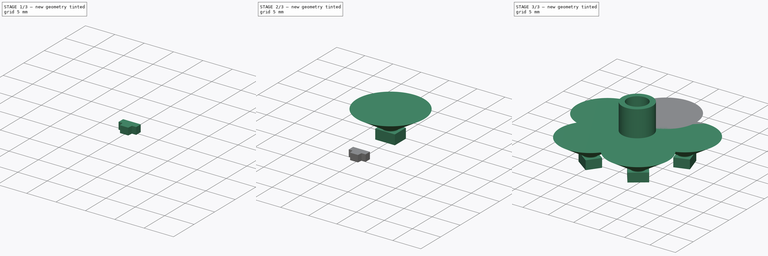
[diagram: build sequence overview — one tinted view per stage of 3, left to right]
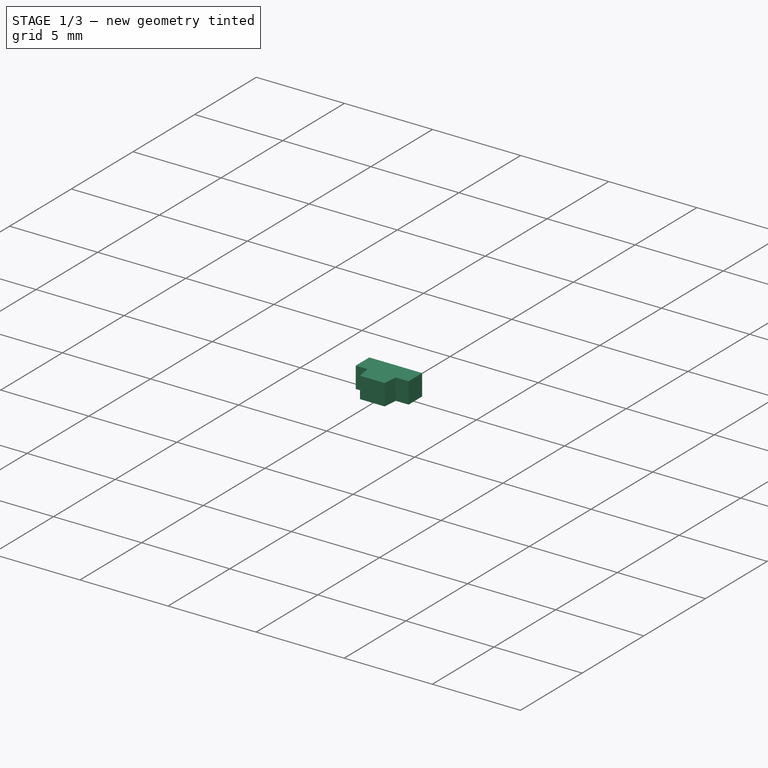
[diagram: stage 1 of 3 — iso view after this stage's code; geometry added in this stage tinted green]
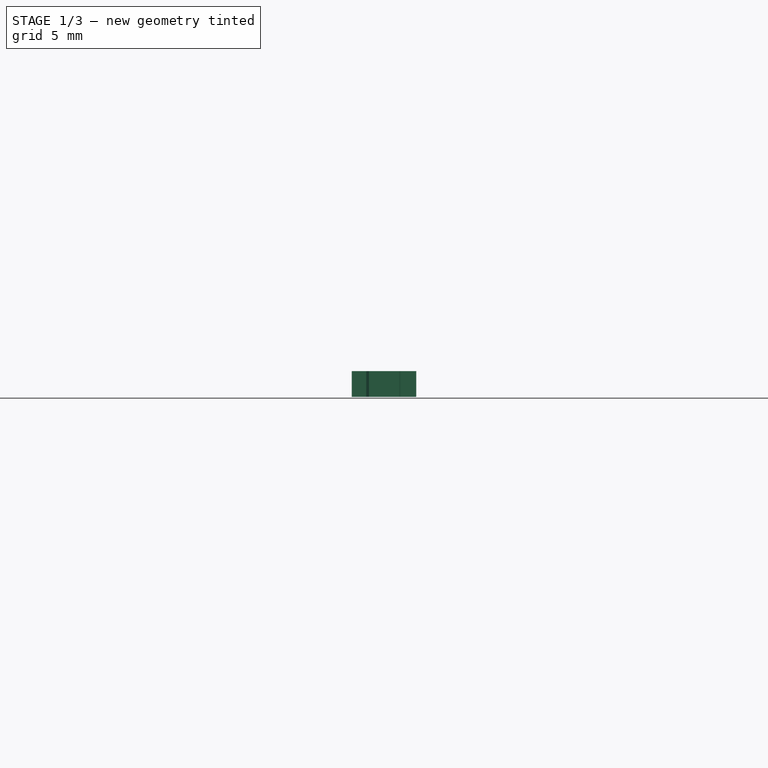
[diagram: stage 1 of 3 — front view after this stage's code; geometry added in this stage tinted green]
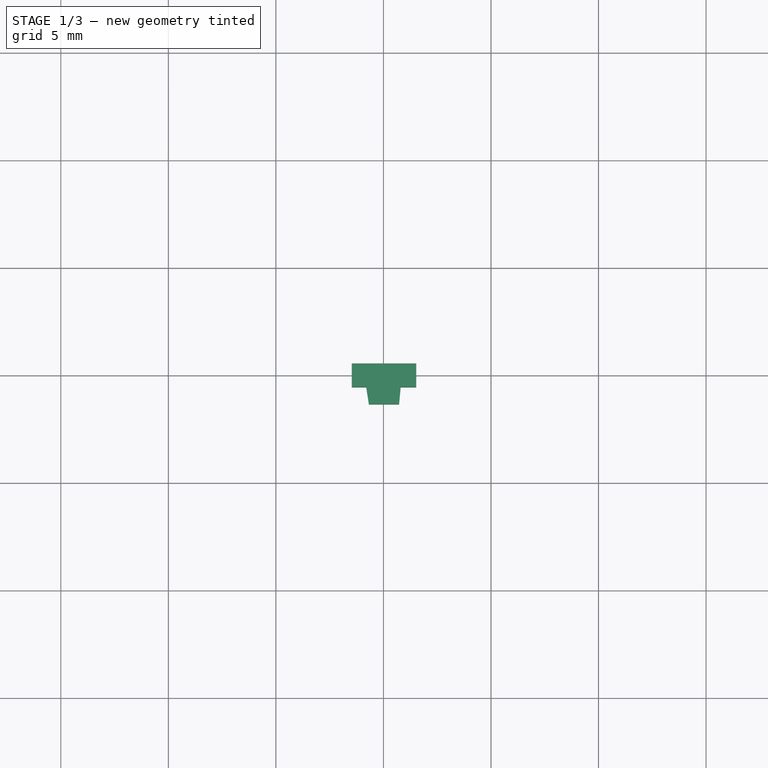
[diagram: stage 1 of 3 — top view after this stage's code; geometry added in this stage tinted green]
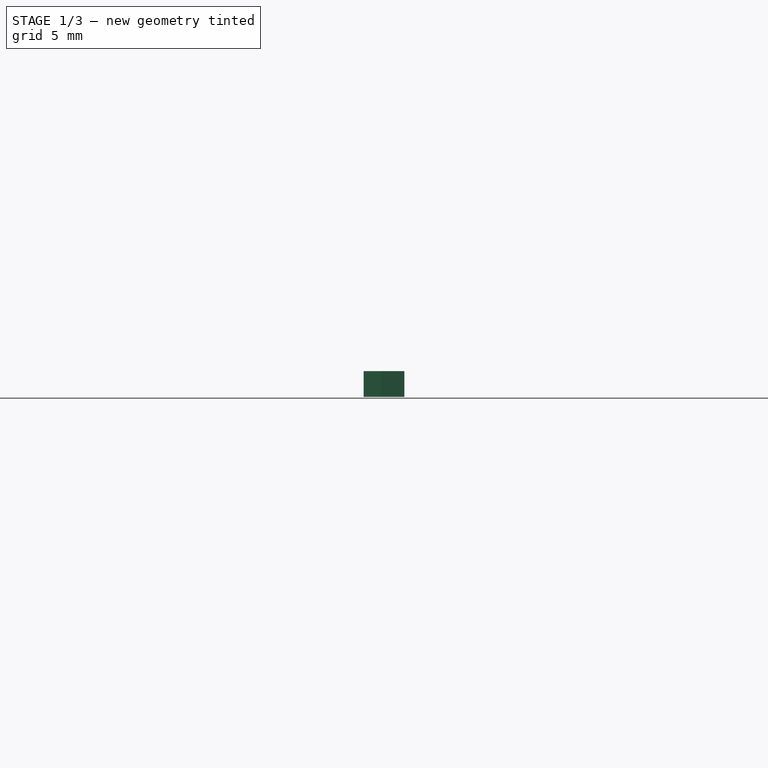
[diagram: stage 1 of 3 — right view after this stage's code; geometry added in this stage tinted green]
FCSTD DOCUMENT  (FreeCAD 0.18R13983 (Git))
Label: POV_DataTransmission_Helper
License: All rights reserved
LicenseURL: http://en.wikipedia.org/wiki/All_rights_reserved
objects: Sketcher::SketchObject×11, PartDesign::Pad×4, PartDesign::Body×3, App::Part×3, PartDesign::AdditiveLoft×2, Part::FeaturePython×1
note: 27 computed .brp shape members not serialized (recipe doc carries the construction recipe); baked Part::Feature solids carry a one-line shape summary decoded from their .brp

FEATURE [App::Part] Part  label="LED_horizontal"
  Group = -> [Body,Array]
  License = CC BY 3.0
  LicenseURL = http://creativecommons.org/licenses/by/3.0/
  Origin = -> Origin
FEATURE [Sketcher::SketchObject] Sketch006
  MapMode = 5
  Support = -> [XY_Plane005]
  sketch-geometry (4):
    g0: LineSegment StartX=-1.47419 StartY=0.560352 StartZ=0 EndX=1.52581 EndY=0.560352 EndZ=0
    g1: LineSegment StartX=1.52581 StartY=0.560352 StartZ=0 EndX=1.52581 EndY=-0.539648 EndZ=0
    g2: LineSegment StartX=1.52581 StartY=-0.539648 StartZ=0 EndX=-1.47419 EndY=-0.539648 EndZ=0
    g3: LineSegment StartX=-1.47419 StartY=-0.539648 StartZ=0 EndX=-1.47419 EndY=0.560352 EndZ=0
  constraints (10):
    c: Coincident(g0,g1)
    c: Coincident(g1,g2)
    c: Coincident(g2,g3)
    c: Coincident(g3,g0)
    c: Horizontal(g0)
    c: Horizontal(g2)
    c: Vertical(g1)
    c: Vertical(g3)
    c: DistanceY(g1,g1) = 1.1
    c: DistanceX(g0,g0) = 3
FEATURE [PartDesign::Pad] Pad003
  Length = 1.2
  Length2 = 100
  Profile = -> Sketch006
  Type = 0
FEATURE [Sketcher::SketchObject] Sketch007
  ExternalGeometry = -> [Pad003]
  MapMode = 5
  Placement = pos=(0,-0.539648,0) rot=(1,0,0;1.5708rad)
  Support = -> [Pad003]
  sketch-geometry (4):
    g0: LineSegment StartX=-0.8 StartY=1.2 StartZ=0 EndX=0.8 EndY=1.2 EndZ=0
    g1: LineSegment StartX=0.8 StartY=1.2 StartZ=0 EndX=0.8 EndY=0 EndZ=0
    g2: LineSegment StartX=0.8 StartY=0 StartZ=0 EndX=-0.8 EndY=0 EndZ=0
    g3: LineSegment StartX=-0.8 StartY=0 StartZ=0 EndX=-0.8 EndY=1.2 EndZ=0
  constraints (11):
    c: Coincident(g0,g1)
    c: Coincident(g1,g2)
    c: Coincident(g2,g3)
    c: Coincident(g3,g0)
    c: Horizontal(g0)
    c: Horizontal(g2)
    c: Vertical(g1)
    c: Vertical(g3)
    c: DistanceX(g0,g0) = 1.6
    c: Symmetric(g2,g2,g-1)
    c: PointOnObject(g0,g-3)
FEATURE [Sketcher::SketchObject] Sketch009  label="helper"
  ExternalGeometry = -> [Pad003]
  MapMode = 5
  Support = -> [XY_Plane005]
  sketch-geometry (4):
    g0: LineSegment StartX=-1.47419 StartY=-1.33965 StartZ=0 EndX=1.52581 EndY=-1.33965 EndZ=0
    g1: LineSegment StartX=-1.47419 StartY=-1.94965 StartZ=0 EndX=1.52581 EndY=-1.94965 EndZ=0
    g2: LineSegment [constr] StartX=-1.47419 StartY=0.560352 StartZ=0 EndX=-1.47419 EndY=-1.94965 EndZ=0
    g3: LineSegment [constr] StartX=1.52581 StartY=-1.94965 StartZ=0 EndX=1.52581 EndY=0.560352 EndZ=0
  constraints (12):
    c: Horizontal(g0)
    c: DistanceY(g0,g-3) = 1.9
    c: Horizontal(g1)
    c: Coincident(g2,g1)
    c: Coincident(g3,g1)
    c: Coincident(g3,g-3)
    c: Vertical(g3)
    c: Vertical(g2)
    c: PointOnObject(g0,g2)
    c: PointOnObject(g0,g3)
    c: Coincident(g2,g-3)
    c: DistanceY(g1,g3) = 2.51
FEATURE [Sketcher::SketchObject] Sketch008
  AttachmentOffset = pos=(0,0,0) rot=(0,1,0;1.5708rad)
  ExternalGeometry = -> [Pad003]
  MapMode = 45
  Placement = pos=(0.025807,-1.33965,0) rot=(0,0.707107,0.707107;3.14159rad)
  Support = -> [Sketch009]
  sketch-geometry (4):
    g0: LineSegment StartX=-0.7 StartY=1.2 StartZ=0 EndX=0.7 EndY=1.2 EndZ=0
    g1: LineSegment StartX=0.7 StartY=1.2 StartZ=0 EndX=0.7 EndY=0 EndZ=0
    g2: LineSegment StartX=0.7 StartY=0 StartZ=0 EndX=-0.7 EndY=0 EndZ=0
    g3: LineSegment StartX=-0.7 StartY=0 StartZ=0 EndX=-0.7 EndY=1.2 EndZ=0
  constraints (11):
    c: Coincident(g0,g1)
    c: Coincident(g1,g2)
    c: Coincident(g2,g3)
    c: Coincident(g3,g0)
    c: Horizontal(g0)
    c: Horizontal(g2)
    c: Vertical(g1)
    c: Vertical(g3)
    c: Symmetric(g2,g2,g-1)
    c: PointOnObject(g0,g-3)
    c: DistanceX(g0,g0) = 1.4
FEATURE [PartDesign::AdditiveLoft] AdditiveLoft001
  BaseFeature = -> Pad003
  Closed = true
  Profile = -> Sketch007
  Ruled = false
  Sections = -> [Sketch008]
FEATURE [Sketcher::SketchObject] Sketch010
  MapMode = 5
  Placement = pos=(0,-1.33965,0) rot=(1,0,0;1.5708rad)
  Support = -> [AdditiveLoft001]
  sketch-geometry (3):
    g0: Circle CenterX=0.067147 CenterY=0.618332 CenterZ=0 NormalX=0 NormalY=0 NormalZ=1 AngleXU=0 Radius=1.00939
    g1: LineSegment StartX=-0.403804 StartY=-0.153466 StartZ=0 EndX=0.588612 EndY=-0.112392 EndZ=0
    g2: LineSegment StartX=-0.246373 StartY=1.29151 StartZ=0 EndX=0.534308 EndY=1.29151 EndZ=0
  constraints (1):
    c: Horizontal(g2)
FEATURE [PartDesign::Body] Body002  label="VSMY14940"
  Group = -> [Sketch006,Pad003,Sketch007,Sketch008,Sketch009,AdditiveLoft001,Sketch010]
  Origin = -> Origin005
  Tip = -> AdditiveLoft001
FEATURE [App::Part] Part002  label="LED_vertical"
  Group = -> [Body002]
  License = CC BY 3.0
  LicenseURL = http://creativecommons.org/licenses/by/3.0/
  Origin = -> Origin004
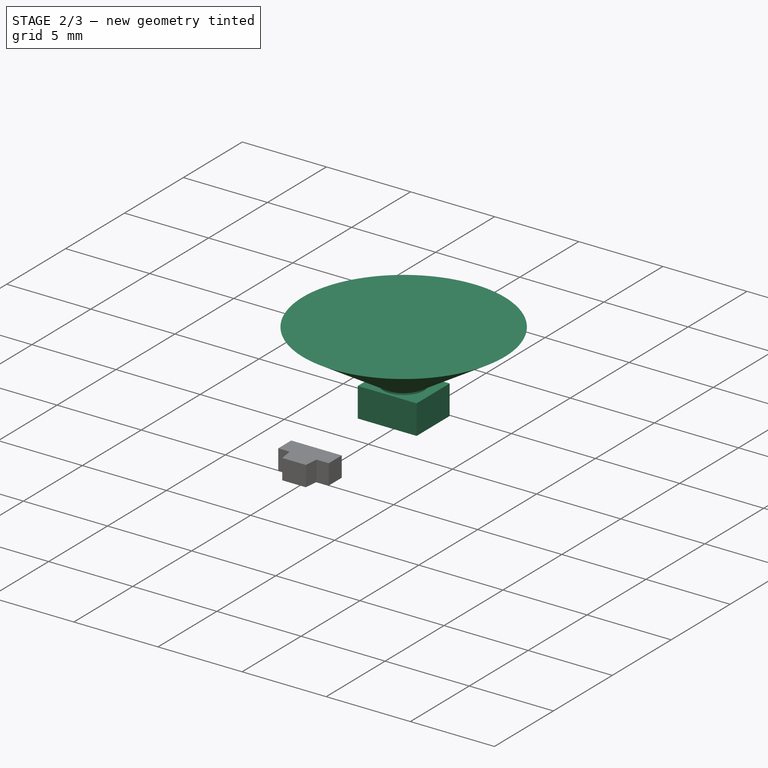
[diagram: stage 2 of 3 — iso view after this stage's code; geometry added in this stage tinted green]
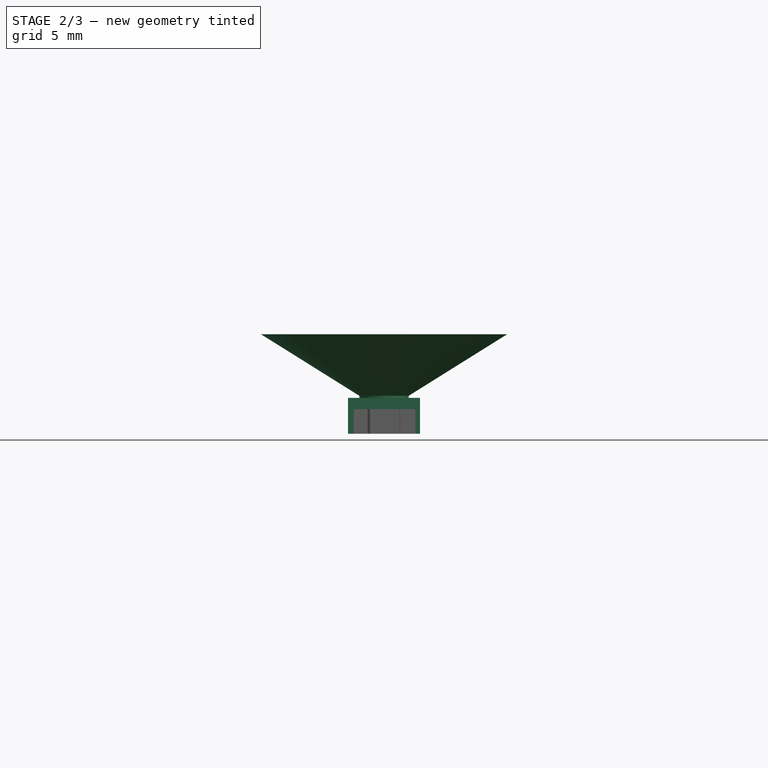
[diagram: stage 2 of 3 — front view after this stage's code; geometry added in this stage tinted green]
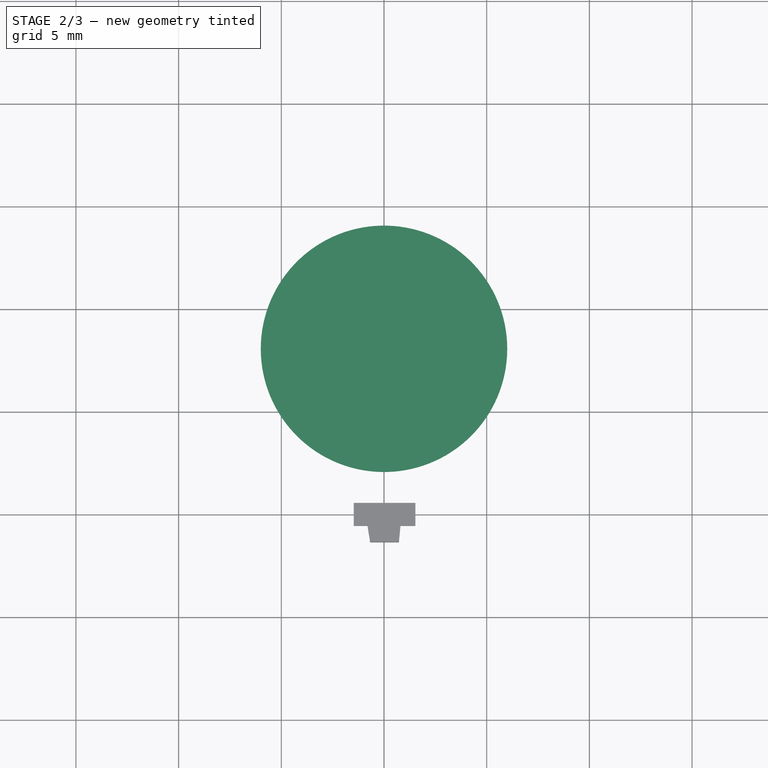
[diagram: stage 2 of 3 — top view after this stage's code; geometry added in this stage tinted green]
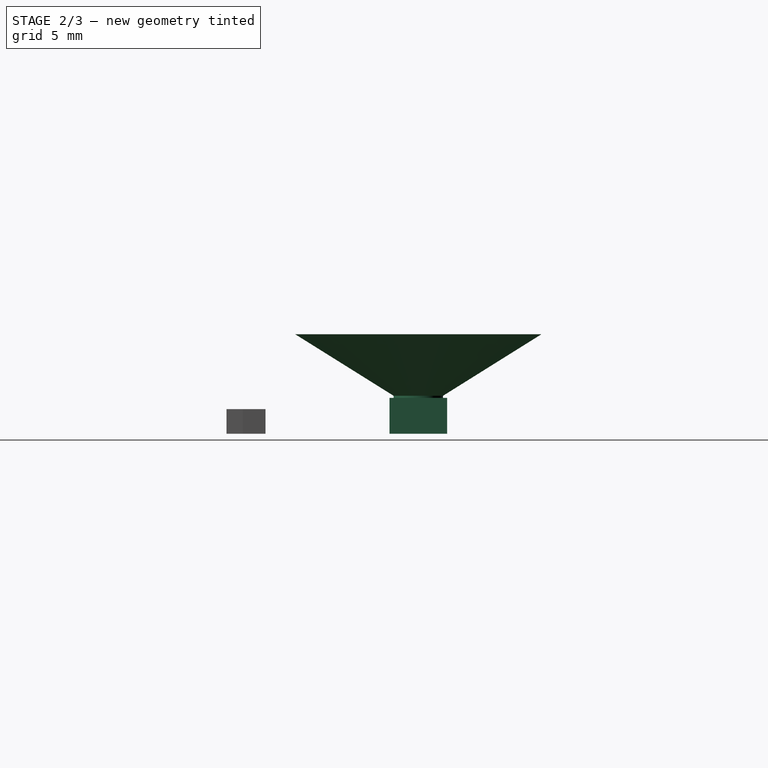
[diagram: stage 2 of 3 — right view after this stage's code; geometry added in this stage tinted green]
FEATURE [Sketcher::SketchObject] Sketch
  sketch-geometry (7):
    g0: LineSegment StartX=-1.75 StartY=9.4 StartZ=0 EndX=1.75 EndY=9.4 EndZ=0
    g1: LineSegment StartX=1.75 StartY=9.4 StartZ=0 EndX=1.75 EndY=6.6 EndZ=0
    g2: LineSegment StartX=1.75 StartY=6.6 StartZ=0 EndX=-1.75 EndY=6.6 EndZ=0
    g3: LineSegment StartX=-1.75 StartY=6.6 StartZ=0 EndX=-1.75 EndY=9.4 EndZ=0
    g4: Circle [constr] CenterX=0 CenterY=0 CenterZ=0 NormalX=0 NormalY=0 NormalZ=1 AngleXU=0 Radius=8
    g5: Circle [constr] CenterX=0 CenterY=0 CenterZ=0 NormalX=0 NormalY=0 NormalZ=1 AngleXU=0 Radius=3
    g6: GeomPoint X=0 Y=8 Z=0
  constraints (17):
    c: Coincident(g0,g1)
    c: Coincident(g1,g2)
    c: Coincident(g2,g3)
    c: Coincident(g3,g0)
    c: Horizontal(g0)
    c: Horizontal(g2)
    c: Vertical(g1)
    c: Vertical(g3)
    c: DistanceX(g0,g0) = 3.5
    c: DistanceY(g1,g1) = 2.8
    c: Coincident(g4,g-1)
    c: Radius(g4) = 8
    c: Coincident(g5,g-1)
    c: Radius(g5) = 3
    c: Symmetric(g2,g0,g6)
    c: PointOnObject(g6,g-2)
    c: PointOnObject(g6,g4)
FEATURE [PartDesign::Pad] Pad
  Length = 1.75
  Length2 = 100
  Profile = -> Sketch
  Type = 0
FEATURE [PartDesign::Body] Body001  label="Axis_Body"
  Group = -> [Sketch001,Pad001]
  Origin = -> Origin003
  Tip = -> Pad001
FEATURE [App::Part] Part001  label="Axis"
  Group = -> [Body001]
  License = CC BY 3.0
  LicenseURL = http://creativecommons.org/licenses/by/3.0/
  Origin = -> Origin002
FEATURE [Sketcher::SketchObject] Sketch002
  ExternalGeometry = -> [Pad]
  MapMode = 5
  Placement = pos=(0,0,1.75) rot=(0,0,1;0rad)
  Support = -> [Pad]
  sketch-geometry (1):
    g0: Circle CenterX=-8e-12 CenterY=8 CenterZ=0 NormalX=0 NormalY=0 NormalZ=1 AngleXU=0 Radius=1.2
  constraints (2):
    c: Radius(g0) = 1.2
    c: Symmetric(g-3,g-4,g0)
FEATURE [PartDesign::Pad] Pad002
  BaseFeature = -> Pad
  Length = 0.1
  Length2 = 100
  Profile = -> Sketch002
  Type = 0
FEATURE [Sketcher::SketchObject] Sketch004
  AttachmentOffset = pos=(0,0,3) rot=(0,0,1;0rad)
  ExternalGeometry = -> [Pad002]
  MapMode = 5
  Placement = pos=(0,0,4.85) rot=(0,0,1;0rad)
  Support = -> [Pad002]
  sketch-geometry (1):
    g0: Circle CenterX=0 CenterY=8 CenterZ=0 NormalX=0 NormalY=0 NormalZ=1 AngleXU=0 Radius=6
  constraints (2):
    c: Radius(g0) = 6
    c: Coincident(g0,g-3)
FEATURE [Sketcher::SketchObject] Sketch005
  ExternalGeometry = -> [Pad002]
  MapMode = 5
  Placement = pos=(0,0,1.85) rot=(0,0,1;0rad)
  Support = -> [Pad002]
  sketch-geometry (1):
    g0: Circle CenterX=-8e-12 CenterY=8 CenterZ=0 NormalX=0 NormalY=0 NormalZ=1 AngleXU=0 Radius=1.2
  constraints (2):
    c: Coincident(g0,g-3)
    c: Equal(g0,g-3)
FEATURE [Sketcher::SketchObject] Sketch003
  ExternalGeometry = -> [Pad002]
  MapMode = 5
  Placement = pos=(0,0,0) rot=(0,0.707107,0.707107;3.14159rad)
  Support = -> [XZ_Plane001]
  sketch-geometry (5):
    g0: LineSegment [constr] StartX=8e-12 StartY=1.85 StartZ=0 EndX=8e-12 EndY=1.75 EndZ=0
    g1: LineSegment StartX=-1.2 StartY=1.85 StartZ=0 EndX=1.2 EndY=1.85 EndZ=0
    g2: LineSegment StartX=1.2 StartY=1.85 StartZ=0 EndX=6.39615 EndY=4.85 EndZ=0
    g3: LineSegment StartX=-1.2 StartY=1.85 StartZ=0 EndX=-6.39615 EndY=4.85 EndZ=0
    g4: LineSegment StartX=-6.39615 StartY=4.85 StartZ=0 EndX=6.39615 EndY=4.85 EndZ=0
  constraints (16):
    c: Vertical(g0)
    c: Symmetric(g-4,g-4,g0)
    c: PointOnObject(g0,g-3)
    c: Horizontal(g1)
    c: Symmetric(g1,g1,g0)
    c: DistanceX(g1,g1) = 2.4
    c: Coincident(g2,g1)
    c: Coincident(g3,g1)
    c: Angle(g-2,g2) = 2.0944
    c: Angle(g3,g-2) = 2.0944
    c: Equal(g3,g2)
    c: Horizontal(g4)
    c: Coincident(g4,g2)
    c: Coincident(g3,g4)
    c: DistanceY(g1,g3) = 3
    c: DistanceX(g4,g4) = 12.7923
FEATURE [PartDesign::AdditiveLoft] AdditiveLoft
  BaseFeature = -> Pad002
  Closed = false
  Profile = -> Sketch005
  Ruled = false
  Sections = -> [Sketch004]
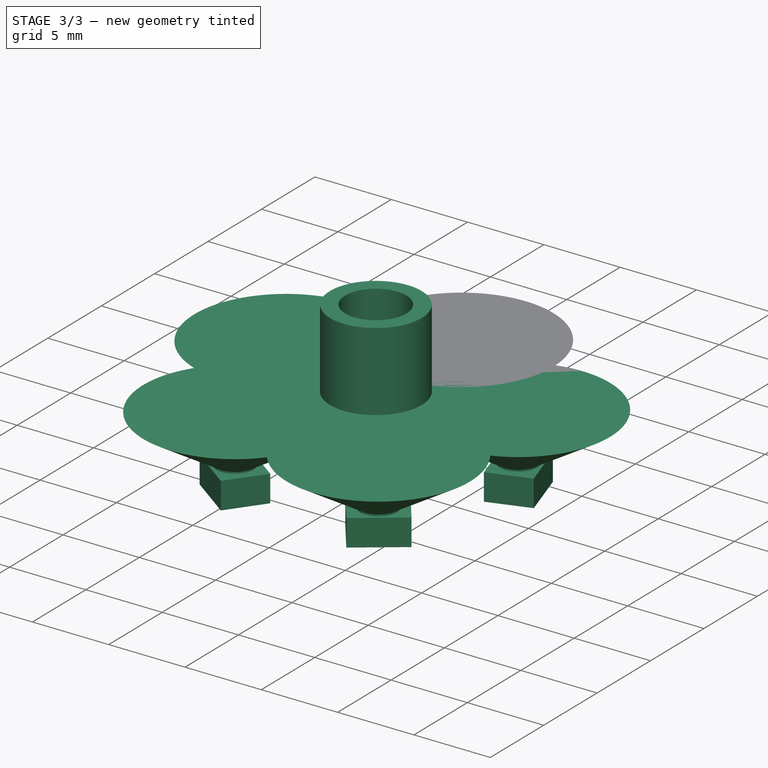
[diagram: stage 3 of 3 — iso view after this stage's code; geometry added in this stage tinted green]
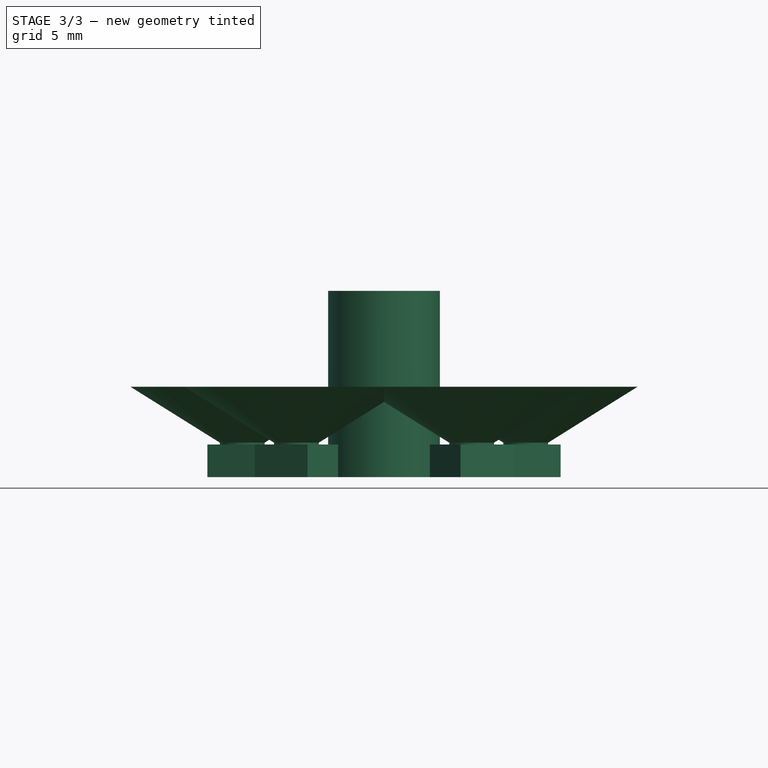
[diagram: stage 3 of 3 — front view after this stage's code; geometry added in this stage tinted green]
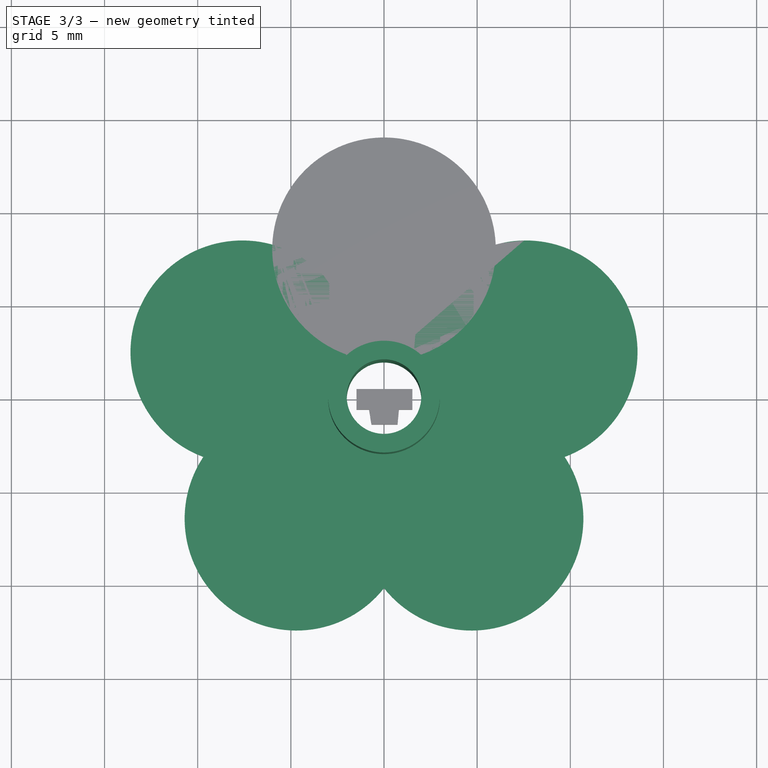
[diagram: stage 3 of 3 — top view after this stage's code; geometry added in this stage tinted green]
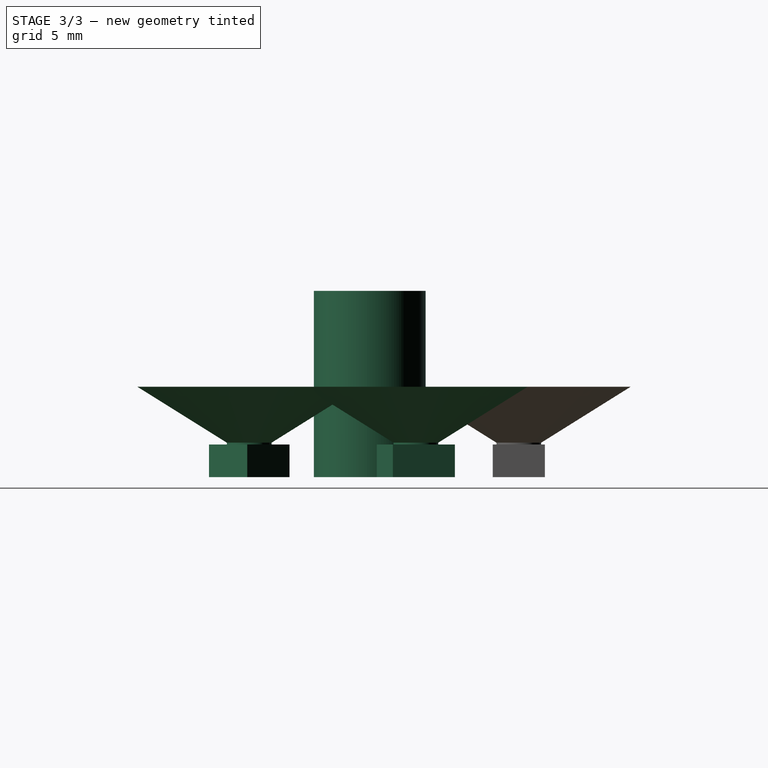
[diagram: stage 3 of 3 — right view after this stage's code; geometry added in this stage tinted green]
FEATURE [Sketcher::SketchObject] Sketch001
  MapMode = 5
  Support = -> [XY_Plane003]
  sketch-geometry (3):
    g0: Circle CenterX=0 CenterY=0 CenterZ=0 NormalX=0 NormalY=0 NormalZ=1 AngleXU=0 Radius=3
    g1: Circle CenterX=0 CenterY=0 CenterZ=0 NormalX=0 NormalY=0 NormalZ=1 AngleXU=0 Radius=2
    g2: LineSegment [constr] StartX=-1.99999 StartY=-0.00662114 StartZ=0 EndX=-2.99999 EndY=-0.00662114 EndZ=0
  constraints (7):
    c: Coincident(g0,g-1)
    c: Radius(g0) = 3
    c: Coincident(g1,g-1)
    c: PointOnObject(g2,g1)
    c: PointOnObject(g2,g0)
    c: Horizontal(g2)
    c: DistanceX(g2,g2) = 1
FEATURE [PartDesign::Pad] Pad001
  Length = 10
  Length2 = 100
  Profile = -> Sketch001
  Type = 0
FEATURE [PartDesign::Body] Body  label="LED_Body"
  Group = -> [Sketch,Pad,Sketch002,Pad002,Sketch003,Sketch004,Sketch005,AdditiveLoft]
  Origin = -> Origin001
  Tip = -> AdditiveLoft
FEATURE [Part::FeaturePython] Array  # Draft array (typed FeaturePython)
  Angle = 360
  ArrayType = 1
  Axis = (0,0,1)
  Base = -> Body
  Center = (0,0,0)
  Fuse = false
  IntervalAxis = (0,0,0)
  IntervalX = (1,0,0)
  IntervalY = (0,1,0)
  IntervalZ = (0,0,0)
  NumberPolar = 5
  NumberX = 2
  NumberY = 2
  NumberZ = 1
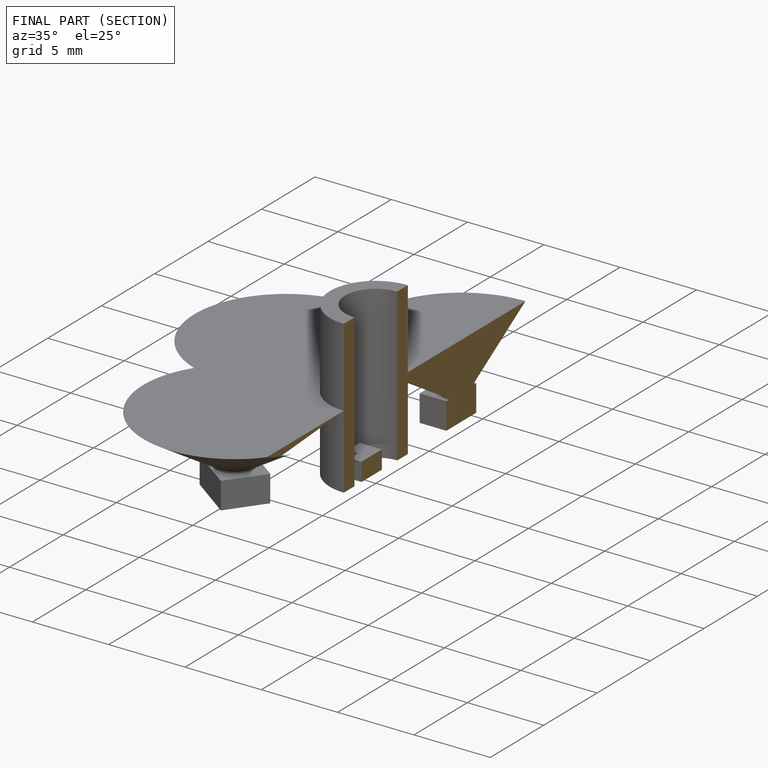
[diagram: finished part — half-section view (interior)]
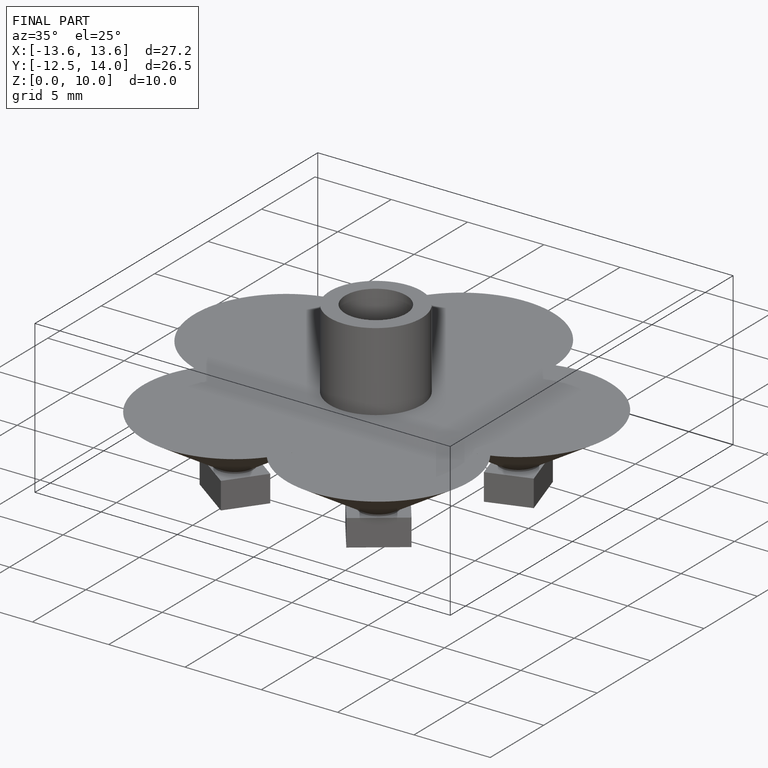
[diagram: finished part — iso view with bounding-box wireframe]
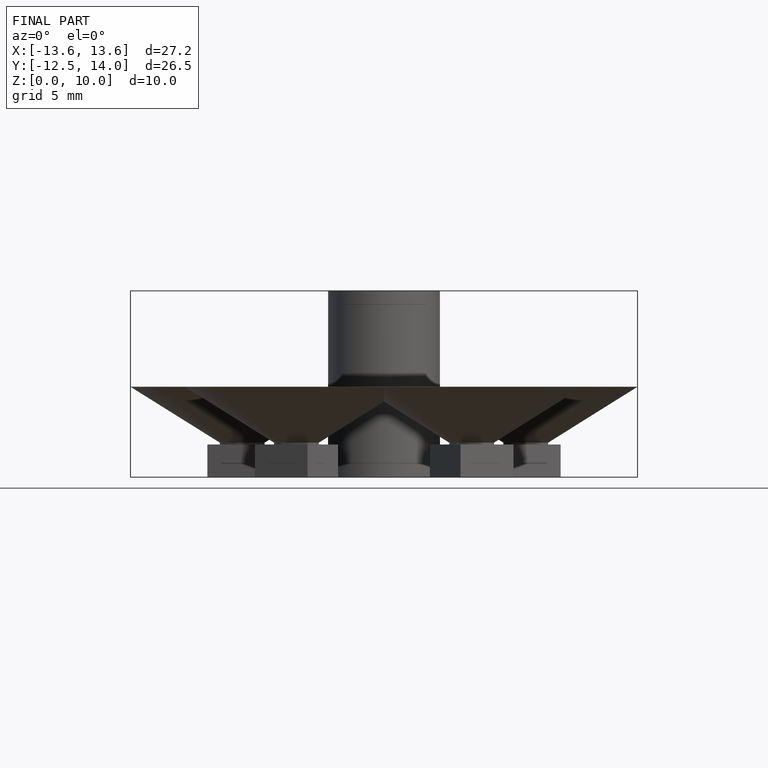
[diagram: finished part — front view with bounding-box wireframe]
